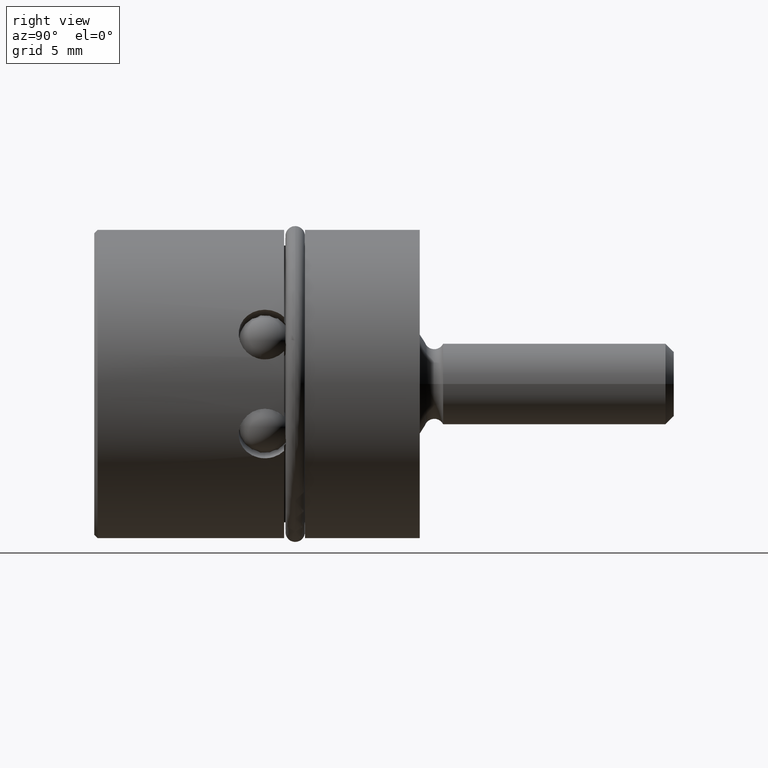
[diagram: clean part render]
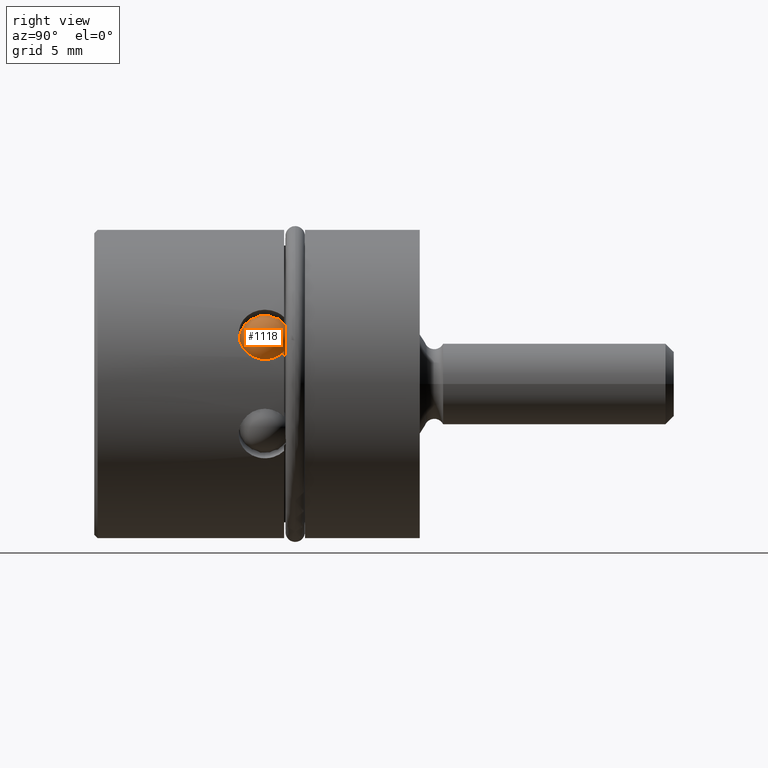
[diagram: same view with one face highlighted and labeled with its STEP entity id]
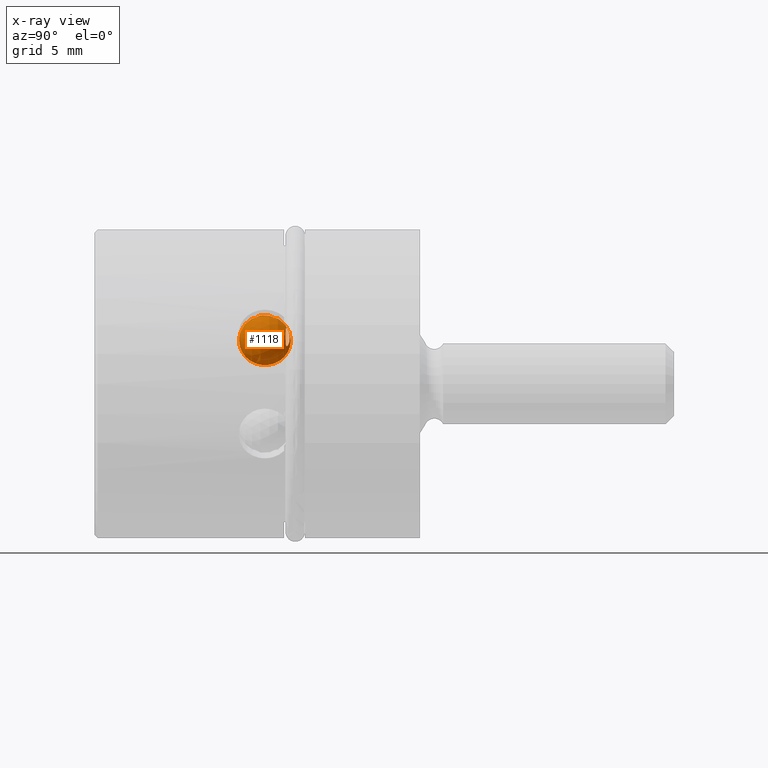
[diagram: x-ray of the same camera — body ghosted, the highlighted face saturated]
A machine part, right view. The second image highlights one B-rep face of the part: STEP entity #1118.
The next image is the same camera in x-ray: the body ghosted, the highlighted face saturated — about 0% of this face is hidden behind the body in this view.
In plain terms, the highlighted spherical surface has radius 1.985 mm.
Its self-contained STEP definition (entity closure, byte-faithful):
#259=CARTESIAN_POINT('',(4.006777077608E-1,5.907819657762E-1,
1.377476090852E-1));
#260=CARTESIAN_POINT('',(4.014514964225E-1,5.907742133838E-1,
1.355132284405E-1));
#261=CARTESIAN_POINT('',(4.030371733894E-1,5.904933279596E-1,
1.313671942646E-1));
#262=CARTESIAN_POINT('',(4.054446804062E-1,5.895293566451E-1,
1.260971584834E-1));
#263=CARTESIAN_POINT('',(4.079339185709E-1,5.881688505255E-1,
1.216850729745E-1));
#264=CARTESIAN_POINT('',(4.104730293710E-1,5.865767330054E-1,
1.182323150299E-1));
#265=CARTESIAN_POINT('',(4.132774720764E-1,5.847460396063E-1,
1.156506226310E-1));
#266=CARTESIAN_POINT('',(4.161667655806E-1,5.829183299559E-1,
1.143234669150E-1));
#267=CARTESIAN_POINT('',(4.192322340744E-1,5.811534764762E-1,
1.144174436918E-1));
#268=CARTESIAN_POINT('',(4.221466433984E-1,5.797228012929E-1,
1.162933882738E-1));
#269=CARTESIAN_POINT('',(4.243634730935E-1,5.788283719474E-1,
1.195216678715E-1));
#270=CARTESIAN_POINT('',(4.258352176647E-1,5.783329916556E-1,
1.235181544074E-1));
#271=CARTESIAN_POINT('',(4.266463592336E-1,5.780870537411E-1,
1.282101391767E-1));
#272=CARTESIAN_POINT('',(4.267413561806E-1,5.780018110888E-1,
1.335513277707E-1));
#273=CARTESIAN_POINT('',(4.260400627741E-1,5.779978319759E-1,
1.393709196203E-1));
#274=CARTESIAN_POINT('',(4.249775221860E-1,5.780051034344E-1,
1.435106495636E-1));
#275=CARTESIAN_POINT('',(4.242677424568E-1,5.780054420287E-1,
1.456327189793E-1));
#277=CARTESIAN_POINT('',(4.242677424568E-1,5.780054420287E-1,
1.456327189793E-1));
#278=CARTESIAN_POINT('',(4.237402156240E-1,5.780056936808E-1,
1.472098963933E-1));
#279=CARTESIAN_POINT('',(4.225118568998E-1,5.780027857255E-1,
1.503594525031E-1));
#280=CARTESIAN_POINT('',(4.200008589436E-1,5.779954781066E-1,
1.551579133508E-1));
#281=CARTESIAN_POINT('',(4.169272073444E-1,5.780289472746E-1,
1.595694688796E-1));
#282=CARTESIAN_POINT('',(4.135306062165E-1,5.781743869588E-1,
1.632267464753E-1));
#283=CARTESIAN_POINT('',(4.099277261563E-1,5.785287150677E-1,
1.659998759895E-1));
#284=CARTESIAN_POINT('',(4.063636142955E-1,5.791599669269E-1,
1.677405578229E-1));
#285=CARTESIAN_POINT('',(4.027301815781E-1,5.802710221685E-1,
1.683014767839E-1));
#286=CARTESIAN_POINT('',(3.998005603322E-1,5.817605373707E-1,
1.674397243779E-1));
#287=CARTESIAN_POINT('',(3.976189045335E-1,5.836532554442E-1,
1.651092573627E-1));
#288=CARTESIAN_POINT('',(3.965637494508E-1,5.854348267929E-1,
1.619836285161E-1));
#289=CARTESIAN_POINT('',(3.962397006854E-1,5.870309334543E-1,
1.584021597509E-1));
#290=CARTESIAN_POINT('',(3.964813676208E-1,5.883930596836E-1,
1.544749954279E-1));
#291=CARTESIAN_POINT('',(3.971259894226E-1,5.894588934127E-1,
1.504146723539E-1));
#292=CARTESIAN_POINT('',(3.981038952090E-1,5.902465040007E-1,
1.461277524076E-1));
#293=CARTESIAN_POINT('',(3.993204141512E-1,5.907004197453E-1,
1.418233283193E-1));
#294=CARTESIAN_POINT('',(4.002115314842E-1,5.907866362782E-1,
1.390937327762E-1));
#295=CARTESIAN_POINT('',(4.006777077608E-1,5.907819657762E-1,
1.377476090852E-1));
#369=CARTESIAN_POINT('',(3.791529488153E-1,5.16E-1,1.305528299373E-1));
#370=DIRECTION('',(-9.455185755993E-1,0.E0,-3.255681544572E-1));
#371=DIRECTION('',(0.E0,-1.E0,0.E0));
#372=AXIS2_PLACEMENT_3D('',#369,#370,#371);
#374=CARTESIAN_POINT('',(3.791529488153E-1,5.16E-1,1.305528299373E-1));
#375=DIRECTION('',(9.455185755993E-1,0.E0,3.255681544572E-1));
#376=DIRECTION('',(0.E0,-1.E0,0.E0));
#377=AXIS2_PLACEMENT_3D('',#374,#375,#376);
#749=CARTESIAN_POINT('',(3.791529488153E-1,4.3785E-1,1.305528299373E-1));
#750=CARTESIAN_POINT('',(3.791529488153E-1,5.9415E-1,1.305528299373E-1));
#751=VERTEX_POINT('',#749);
#752=VERTEX_POINT('',#750);
#753=VERTEX_POINT('',#259);
#754=VERTEX_POINT('',#275);
#1103=CARTESIAN_POINT('',(3.791529488153E-1,5.16E-1,1.305528299373E-1));
#1104=DIRECTION('',(0.E0,1.E0,0.E0));
#1105=DIRECTION('',(3.255681544572E-1,0.E0,-9.455185755993E-1));
#1106=AXIS2_PLACEMENT_3D('',#1103,#1104,#1105);
#1107=SPHERICAL_SURFACE('',#1106,7.815E-2);
#1109=ORIENTED_EDGE('',*,*,#1108,.T.);
#1111=ORIENTED_EDGE('',*,*,#1110,.F.);
#1112=EDGE_LOOP('',(#1109,#1111));
#1113=FACE_OUTER_BOUND('',#1112,.F.);
#1114=ORIENTED_EDGE('',*,*,#1052,.F.);
#1115=ORIENTED_EDGE('',*,*,#1054,.F.);
#1116=EDGE_LOOP('',(#1114,#1115));
#1117=FACE_BOUND('',#1116,.F.);
#276=B_SPLINE_CURVE_WITH_KNOTS('',3,(#259,#260,#261,#262,#263,#264,#265,#266,
#267,#268,#269,#270,#271,#272,#273,#274,#275),.UNSPECIFIED.,.F.,.F.,(4,1,1,1,1,
1,1,1,1,1,1,1,1,1,4),(0.E0,7.142857142857E-2,1.428571428571E-1,
2.142857142857E-1,2.857142857143E-1,3.571428571429E-1,4.285714285714E-1,5.E-1,
5.714285714286E-1,6.428571428571E-1,7.142857142857E-1,7.857142857143E-1,
8.571428571429E-1,9.285714285714E-1,1.E0),.UNSPECIFIED.);
#296=B_SPLINE_CURVE_WITH_KNOTS('',3,(#277,#278,#279,#280,#281,#282,#283,#284,
#285,#286,#287,#288,#289,#290,#291,#292,#293,#294,#295),.UNSPECIFIED.,.F.,.F.,
(4,1,1,1,1,1,1,1,1,1,1,1,1,1,1,1,4),(0.E0,6.25E-2,1.25E-1,1.875E-1,2.5E-1,
3.125E-1,3.75E-1,4.375E-1,5.E-1,5.625E-1,6.25E-1,6.875E-1,7.5E-1,8.125E-1,
8.75E-1,9.375E-1,1.E0),.UNSPECIFIED.);
#373=CIRCLE('',#372,7.815E-2);
#378=CIRCLE('',#377,7.815E-2);
#1052=EDGE_CURVE('',#753,#754,#276,.T.);
#1054=EDGE_CURVE('',#754,#753,#296,.T.);
#1108=EDGE_CURVE('',#751,#752,#373,.T.);
#1110=EDGE_CURVE('',#751,#752,#378,.T.);
#1118=ADVANCED_FACE('',(#1113,#1117),#1107,.T.);